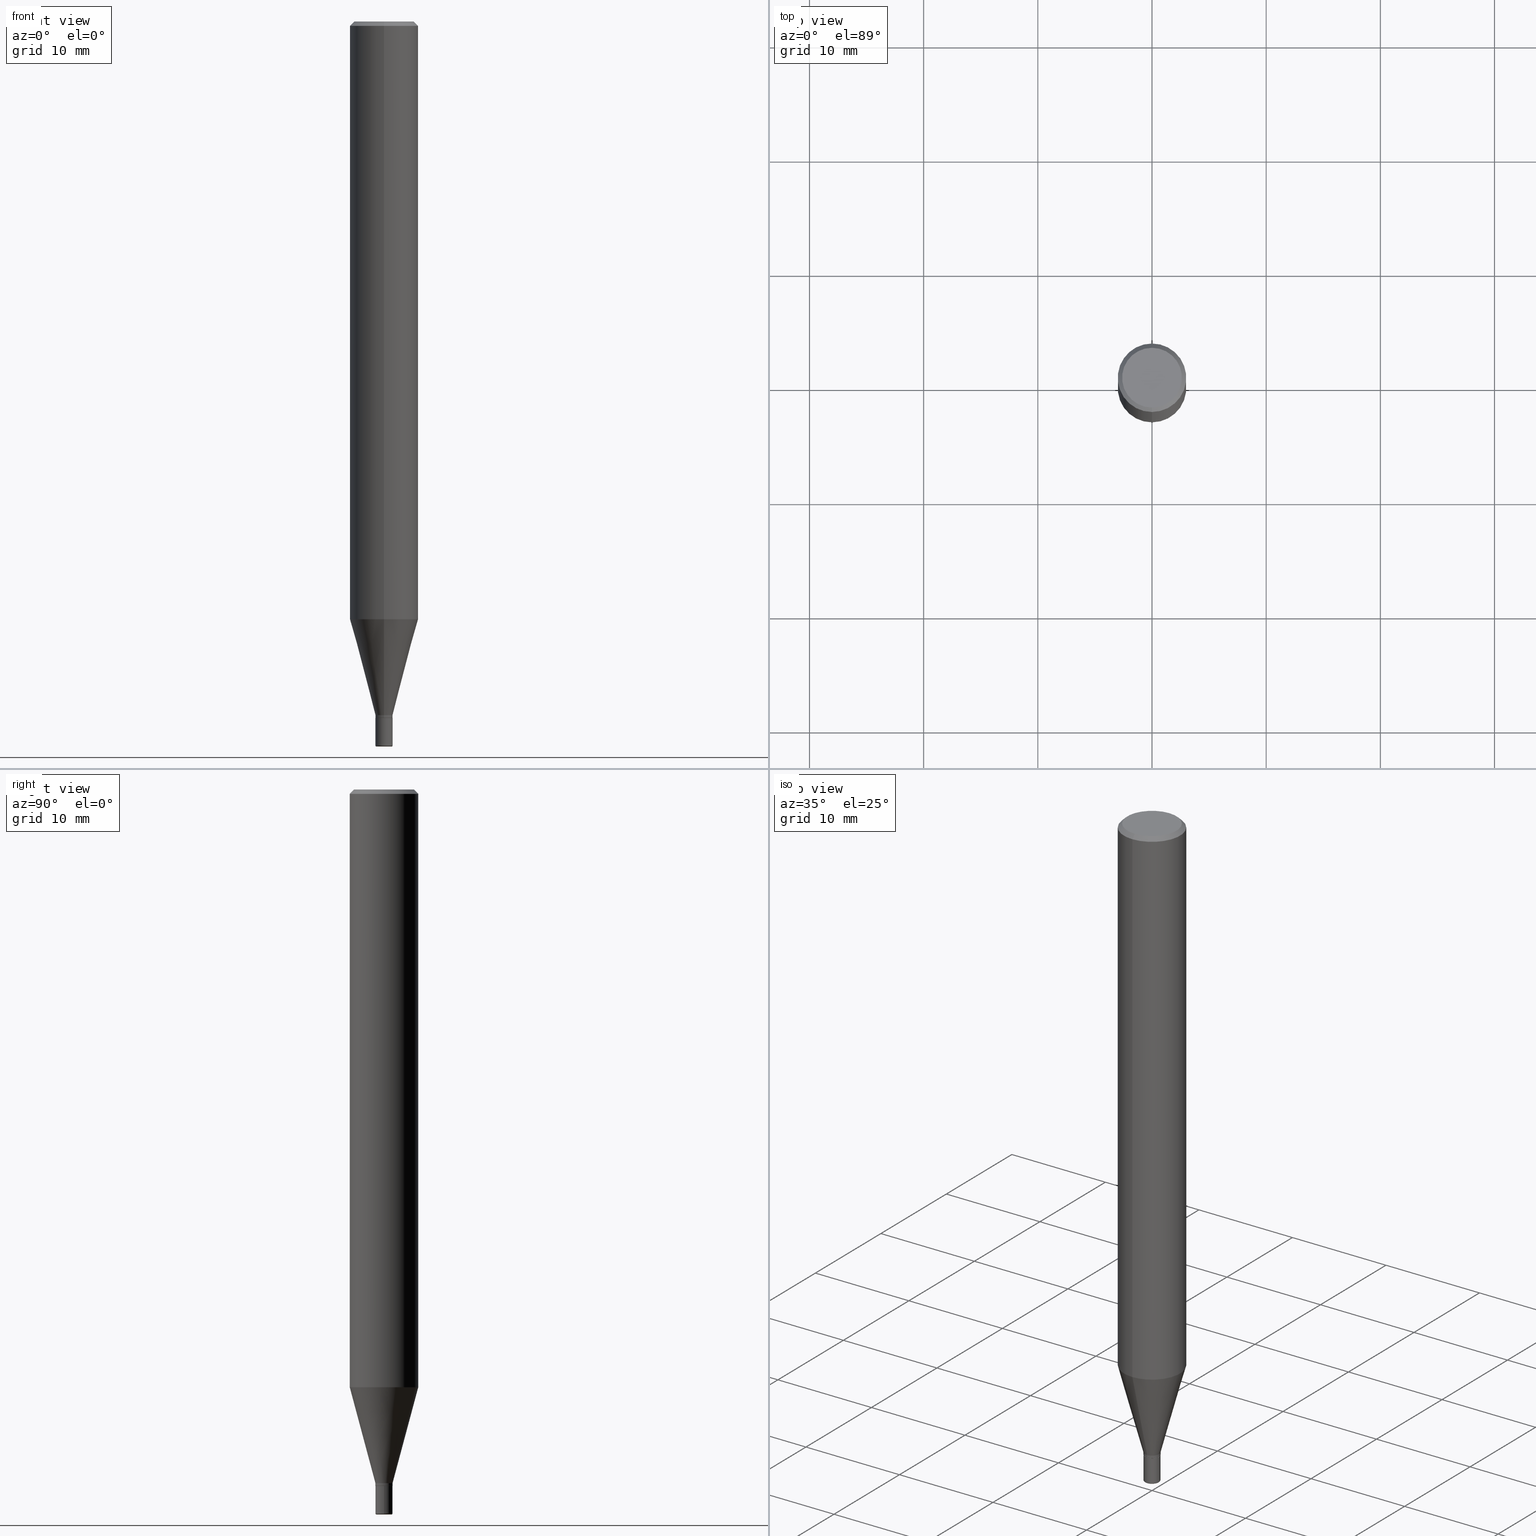
[diagram: canonical four-view strip — front | top / right | iso, engineering-drawing reading convention]
A machine part, canonical four-view strip (front | top / right | iso — engineering-drawing reading convention). The complete STEP part file that produces these views, byte-faithful:
ISO-10303-21;
HEADER;
FILE_DESCRIPTION (( 'STEP AP203' ),
    '1' );
FILE_NAME ('05306.STEP',
    '2024-02-29T19:35:36',
    ( '' ),
    ( '' ),
    'SwSTEP 2.0',
    'SolidWorks 2023',
    '' );
FILE_SCHEMA (( 'CONFIG_CONTROL_DESIGN' ));
ENDSEC;

DATA;
#1 =( CONVERSION_BASED_UNIT ( 'INCH', #517 ) LENGTH_UNIT ( ) NAMED_UNIT ( #414 ) );
#2 = DIRECTION ( 'NONE',  ( 7.105427357601001859E-15, 1.000000000000000000, -3.491481338843145583E-15 ) ) ;
#3 =( NAMED_UNIT ( * ) SI_UNIT ( $, .STERADIAN. ) SOLID_ANGLE_UNIT ( ) );
#4 = DIRECTION ( 'NONE',  ( -2.445666505520537191E-29, 3.491198222142504740E-15, 1.000000000000000000 ) ) ;
#5 = CIRCLE ( 'NONE', #274, 0.1031000000000000111 ) ;
#6 = CARTESIAN_POINT ( 'NONE',  ( 2.099653784171095794E-16, 0.02954999999999999988, -1.031649074643109963E-16 ) ) ;
#7 = AXIS2_PLACEMENT_3D ( 'NONE', #331, #488, #136 ) ;
#8 = PERSON_AND_ORGANIZATION ( #185, #516 ) ;
#9 = ADVANCED_FACE ( 'NONE', ( #26 ), #479, .T. ) ;
#10 = EDGE_CURVE ( 'NONE', #477, #103, #224, .T. ) ;
#11 = CIRCLE ( 'NONE', #88, 0.1180999999999999966 ) ;
#12 = CIRCLE ( 'NONE', #493, 0.02955000000000002069 ) ;
#13 = CIRCLE ( 'NONE', #225, 0.02955000000000002069 ) ;
#14 = VERTEX_POINT ( 'NONE', #239 ) ;
#15 = LINE ( 'NONE', #6, #433 ) ;
#16 = EDGE_LOOP ( 'NONE', ( #43, #56, #431, #21 ) ) ;
#17 = ORIENTED_EDGE ( 'NONE', *, *, #321, .F. ) ;
#18 = VECTOR ( 'NONE', #166, 39.37007874015748143 ) ;
#19 = VERTEX_POINT ( 'NONE', #289 ) ;
#20 = LINE ( 'NONE', #470, #339 ) ;
#21 = ORIENTED_EDGE ( 'NONE', *, *, #23, .F. ) ;
#22 = EDGE_CURVE ( 'NONE', #146, #504, #12, .T. ) ;
#23 = EDGE_CURVE ( 'NONE', #103, #477, #463, .T. ) ;
#24 = DIRECTION ( 'NONE',  ( -6.982962677686265922E-15, -1.000000000000000000, 3.491198222142504346E-15 ) ) ;
#25 = DIRECTION ( 'NONE',  ( -2.445666505520537191E-29, 3.491198222142504346E-15, 1.000000000000000000 ) ) ;
#26 = FACE_OUTER_BOUND ( 'NONE', #497, .T. ) ;
#27 = CARTESIAN_POINT ( 'NONE',  ( 6.199188644380781470E-29, -8.606238667193129794E-15, -2.500000000000000000 ) ) ;
#28 = LINE ( 'NONE', #235, #486 ) ;
#29 = VECTOR ( 'NONE', #226, 39.37007874015748143 ) ;
#30 = DIRECTION ( 'NONE',  ( 1.000000000000000000, -6.982962677686236734E-15, 0.000000000000000000 ) ) ;
#31 = DIRECTION ( 'NONE',  ( 2.445666505520536631E-29, -3.491198222142504740E-15, -1.000000000000000000 ) ) ;
#32 = FACE_OUTER_BOUND ( 'NONE', #64, .T. ) ;
#33 = EDGE_CURVE ( 'NONE', #19, #83, #471, .T. ) ;
#34 = DIRECTION ( 'NONE',  ( 6.982962677686265922E-15, 1.000000000000000000, -3.487819265831411744E-15 ) ) ;
#35 = CARTESIAN_POINT ( 'NONE',  ( 5.849056014602917509E-29, -8.349549668076013435E-15, -2.391600000000000392 ) ) ;
#36 = DIRECTION ( 'NONE',  ( 0.000000000000000000, 0.000000000000000000, 1.000000000000000000 ) ) ;
#37 =( GEOMETRIC_REPRESENTATION_CONTEXT ( 3 ) GLOBAL_UNCERTAINTY_ASSIGNED_CONTEXT ( ( #280 ) ) GLOBAL_UNIT_ASSIGNED_CONTEXT ( ( #1, #300, #3 ) ) REPRESENTATION_CONTEXT ( 'NONE', 'WORKASPACE' ) );
#38 = LINE ( 'NONE', #130, #250 ) ;
#39 = DIRECTION ( 'NONE',  ( -2.445666505520536631E-29, 3.491198222142504740E-15, 1.000000000000000000 ) ) ;
#40 = AXIS2_PLACEMENT_3D ( 'NONE', #173, #218, #484 ) ;
#41 = CARTESIAN_POINT ( 'NONE',  ( -2.063465471255709882E-16, -0.02955000000000846186, -2.401100000000000456 ) ) ;
#42 = CARTESIAN_POINT ( 'NONE',  ( -0.02954999999999999988, -8.340148698208928276E-15, -2.401600000000000179 ) ) ;
#43 = ORIENTED_EDGE ( 'NONE', *, *, #459, .F. ) ;
#44 = EDGE_CURVE ( 'NONE', #372, #268, #66, .T. ) ;
#45 = PRODUCT_DEFINITION ( 'UNKNOWN', '', #337, #242 ) ;
#46 = CALENDAR_DATE ( 2024, 29, 2 ) ;
#47 = VERTEX_POINT ( 'NONE', #315 ) ;
#48 = DIRECTION ( 'NONE',  ( -2.445666505520537191E-29, 3.491198222142504740E-15, 1.000000000000000000 ) ) ;
#49 = AXIS2_PLACEMENT_3D ( 'NONE', #246, #376, #202 ) ;
#50 = DATE_AND_TIME ( #420, #60 ) ;
#51 = CARTESIAN_POINT ( 'NONE',  ( 3.668499758280795470E-31, -5.236797333213741629E-17, -0.01499999999999995781 ) ) ;
#52 = DATE_AND_TIME ( #259, #222 ) ;
#53 = EDGE_CURVE ( 'NONE', #490, #146, #369, .T. ) ;
#54 = ORIENTED_EDGE ( 'NONE', *, *, #407, .T. ) ;
#55 = DATE_AND_TIME ( #97, #86 ) ;
#56 = ORIENTED_EDGE ( 'NONE', *, *, #321, .T. ) ;
#57 = AXIS2_PLACEMENT_3D ( 'NONE', #116, #123, #354 ) ;
#58 = VECTOR ( 'NONE', #502, 39.37007874015748143 ) ;
#59 = COORDINATED_UNIVERSAL_TIME_OFFSET ( 5, 0, .BEHIND. ) ;
#60 = LOCAL_TIME ( 14, 35, 36.00000000000000000, #254 ) ;
#61 = VERTEX_POINT ( 'NONE', #126 ) ;
#62 = EDGE_LOOP ( 'NONE', ( #461, #230 ) ) ;
#63 = SHAPE_DEFINITION_REPRESENTATION ( #370, #472 ) ;
#64 = EDGE_LOOP ( 'NONE', ( #54, #416, #500, #340 ) ) ;
#65 = DIRECTION ( 'NONE',  ( 1.000000000000000000, -6.982962677686271444E-15, 4.883557194083114022E-29 ) ) ;
#66 = CIRCLE ( 'NONE', #87, 0.02565000000000001307 ) ;
#67 = DIRECTION ( 'NONE',  ( -1.807323732225323828E-15, -0.2588190451025172978, 0.9659258262890690894 ) ) ;
#68 = AXIS2_PLACEMENT_3D ( 'NONE', #434, #25, #204 ) ;
#69 = EDGE_CURVE ( 'NONE', #268, #14, #375, .T. ) ;
#70 = EDGE_LOOP ( 'NONE', ( #255, #174, #220, #17 ) ) ;
#71 = DIRECTION ( 'NONE',  ( -6.982962677686265922E-15, -1.000000000000000000, 4.626330217890369336E-15 ) ) ;
#72 = CARTESIAN_POINT ( 'NONE',  ( 0.02565000000000001307, -8.907816339790516731E-15, -2.500000000000000000 ) ) ;
#73 = CARTESIAN_POINT ( 'NONE',  ( 5.872289846405362804E-29, -8.382716051186367705E-15, -2.401100000000000456 ) ) ;
#74 = DIRECTION ( 'NONE',  ( -6.982962677686266711E-15, -1.000000000000000000, 0.000000000000000000 ) ) ;
#75 = CARTESIAN_POINT ( 'NONE',  ( 5.873037884934224349E-29, -8.385141583365698841E-15, -2.401600000000000179 ) ) ;
#76 = CARTESIAN_POINT ( 'NONE',  ( 6.104134687118720107E-29, -8.715086569886376426E-15, -2.496100000000000207 ) ) ;
#77 = CIRCLE ( 'NONE', #197, 0.02954999999999997906 ) ;
#78 = ADVANCED_FACE ( 'NONE', ( #453 ), #179, .T. ) ;
#79 = DIRECTION ( 'NONE',  ( -2.445666505520537191E-29, 3.491198222142504346E-15, 1.000000000000000000 ) ) ;
#80 = CARTESIAN_POINT ( 'NONE',  ( -2.063465471256291667E-16, -0.02954999999999999988, 1.031649074643109963E-16 ) ) ;
#81 = FACE_OUTER_BOUND ( 'NONE', #117, .T. ) ;
#82 = DIRECTION ( 'NONE',  ( -6.982962677686266711E-15, -1.000000000000000000, 0.000000000000000000 ) ) ;
#83 = VERTEX_POINT ( 'NONE', #247 ) ;
#84 = DIRECTION ( 'NONE',  ( -6.982962677686265922E-15, -1.000000000000000000, 3.491198222142503951E-15 ) ) ;
#85 = APPROVAL_ROLE ( '' ) ;
#86 = LOCAL_TIME ( 14, 35, 36.00000000000000000, #309 ) ;
#87 = AXIS2_PLACEMENT_3D ( 'NONE', #438, #272, #30 ) ;
#88 = AXIS2_PLACEMENT_3D ( 'NONE', #284, #435, #507 ) ;
#89 = CARTESIAN_POINT ( 'NONE',  ( -7.587710785535310407E-16, -0.1031000000000000111, 3.599133473710561034E-16 ) ) ;
#90 = DIRECTION ( 'NONE',  ( 1.839019923739594004E-15, 0.2588190451025240701, 0.9659258262890673130 ) ) ;
#91 = EDGE_LOOP ( 'NONE', ( #258, #149, #210, #234 ) ) ;
#92 = FACE_OUTER_BOUND ( 'NONE', #501, .T. ) ;
#93 = APPROVAL_ROLE ( '' ) ;
#94 = VECTOR ( 'NONE', #4, 39.37007874015748143 ) ;
#95 = PRODUCT ( '05306', '05306', '', ( #252 ) ) ;
#96 = ORIENTED_EDGE ( 'NONE', *, *, #327, .F. ) ;
#97 = CALENDAR_DATE ( 2024, 29, 2 ) ;
#98 = ORIENTED_EDGE ( 'NONE', *, *, #419, .F. ) ;
#99 = CIRCLE ( 'NONE', #426, 0.02904999999999997862 ) ;
#100 = CARTESIAN_POINT ( 'NONE',  ( 0.000000000000000000, 0.000000000000000000, 0.000000000000000000 ) ) ;
#101 = AXIS2_PLACEMENT_3D ( 'NONE', #288, #39, #485 ) ;
#102 = DIRECTION ( 'NONE',  ( -2.445666505520537191E-29, 3.491198222142504346E-15, 1.000000000000000000 ) ) ;
#103 = VERTEX_POINT ( 'NONE', #42 ) ;
#104 = ORIENTED_EDGE ( 'NONE', *, *, #419, .T. ) ;
#105 = EDGE_CURVE ( 'NONE', #372, #227, #243, .T. ) ;
#106 = DIRECTION ( 'NONE',  ( -2.445468806185136597E-29, 3.491481338843145583E-15, 1.000000000000000000 ) ) ;
#107 = ORIENTED_EDGE ( 'NONE', *, *, #327, .T. ) ;
#108 = DIRECTION ( 'NONE',  ( 1.000000000000000000, -6.982962677686261977E-15, 0.000000000000000000 ) ) ;
#109 = CC_DESIGN_APPROVAL ( #180, ( #337 ) ) ;
#110 = EDGE_CURVE ( 'NONE', #504, #19, #38, .T. ) ;
#111 = AXIS2_PLACEMENT_3D ( 'NONE', #209, #2, #514 ) ;
#112 = LINE ( 'NONE', #245, #113 ) ;
#113 = VECTOR ( 'NONE', #404, 39.37007874015748143 ) ;
#114 = FACE_OUTER_BOUND ( 'NONE', #150, .T. ) ;
#115 = LINE ( 'NONE', #392, #58 ) ;
#116 = CARTESIAN_POINT ( 'NONE',  ( 0.000000000000000000, 0.000000000000000000, 0.000000000000000000 ) ) ;
#117 = EDGE_LOOP ( 'NONE', ( #190, #236, #418, #348 ) ) ;
#118 = CARTESIAN_POINT ( 'NONE',  ( 6.104134687118721228E-29, -8.715086569886378004E-15, -2.496100000000000652 ) ) ;
#119 = DIRECTION ( 'NONE',  ( -6.982962677686265922E-15, -1.000000000000000000, 3.491198222142503951E-15 ) ) ;
#120 = DIRECTION ( 'NONE',  ( -2.445666505520537191E-29, 3.491198222142504346E-15, 1.000000000000000000 ) ) ;
#121 = CIRCLE ( 'NONE', #267, 0.02954999999999997906 ) ;
#122 = CARTESIAN_POINT ( 'NONE',  ( 2.063465471256878875E-16, 0.02954999999999161769, -2.401600000000000179 ) ) ;
#123 = DIRECTION ( 'NONE',  ( -2.445666505520537191E-29, 3.491198222142504346E-15, 1.000000000000000000 ) ) ;
#124 = DIRECTION ( 'NONE',  ( -2.445468806185136597E-29, 3.491481338843145583E-15, 1.000000000000000000 ) ) ;
#125 = EDGE_CURVE ( 'NONE', #495, #61, #177, .T. ) ;
#126 = CARTESIAN_POINT ( 'NONE',  ( -8.246878922347475723E-16, -0.1181000000000000522, -0.01499999999999954495 ) ) ;
#127 = DIRECTION ( 'NONE',  ( 2.438088387897960049E-29, -3.491481338843145188E-15, -1.000000000000000000 ) ) ;
#128 = CARTESIAN_POINT ( 'NONE',  ( 5.245581746749487018E-16, 0.02954999999999167321, -2.391600000000000392 ) ) ;
#129 = AXIS2_PLACEMENT_3D ( 'NONE', #161, #120, #287 ) ;
#130 = CARTESIAN_POINT ( 'NONE',  ( 2.099653784171682016E-16, 0.02954999999999167321, -2.391600000000000392 ) ) ;
#131 = AXIS2_PLACEMENT_3D ( 'NONE', #373, #299, #172 ) ;
#132 = CC_DESIGN_APPROVAL ( #361, ( #509 ) ) ;
#133 = CARTESIAN_POINT ( 'NONE',  ( -8.246878922347479668E-16, -0.1180999999999999966, 4.123105100350297089E-16 ) ) ;
#134 = DIRECTION ( 'NONE',  ( -2.445468806185136597E-29, 3.491481338843145583E-15, 1.000000000000000000 ) ) ;
#135 = ORIENTED_EDGE ( 'NONE', *, *, #305, .F. ) ;
#136 = DIRECTION ( 'NONE',  ( -6.982962677686266711E-15, -1.000000000000000000, 0.000000000000000000 ) ) ;
#137 = PERSON_AND_ORGANIZATION ( #185, #516 ) ;
#138 = EDGE_CURVE ( 'NONE', #19, #462, #427, .T. ) ;
#139 = MANIFOLD_SOLID_BREP ( 'Body-Move/Copy2[1]', #303 ) ;
#140 = CYLINDRICAL_SURFACE ( 'NONE', #147, 0.02954999999999999988 ) ;
#141 = AXIS2_PLACEMENT_3D ( 'NONE', #122, #127, #442 ) ;
#142 = MANIFOLD_SOLID_BREP ( 'Body-Move/Copy2[2]', #365 ) ;
#143 = EDGE_CURVE ( 'NONE', #462, #61, #316, .T. ) ;
#144 = ADVANCED_FACE ( 'NONE', ( #335 ), #140, .T. ) ;
#145 = EDGE_LOOP ( 'NONE', ( #468, #223, #464, #261 ) ) ;
#146 = VERTEX_POINT ( 'NONE', #325 ) ;
#147 = AXIS2_PLACEMENT_3D ( 'NONE', #457, #203, #84 ) ;
#148 = APPROVAL_ROLE ( '' ) ;
#149 = ORIENTED_EDGE ( 'NONE', *, *, #256, .T. ) ;
#150 = EDGE_LOOP ( 'NONE', ( #253, #298, #389, #342 ) ) ;
#151 = CARTESIAN_POINT ( 'NONE',  ( 6.104134687118721228E-29, -8.715086569886378004E-15, -2.496100000000000652 ) ) ;
#152 = EDGE_LOOP ( 'NONE', ( #265, #352 ) ) ;
#153 = CIRCLE ( 'NONE', #317, 0.02954999999999996171 ) ;
#154 = AXIS2_PLACEMENT_3D ( 'NONE', #518, #364, #515 ) ;
#155 = DIRECTION ( 'NONE',  ( -2.445666505520537191E-29, 3.491198222142504346E-15, 1.000000000000000000 ) ) ;
#156 = AXIS2_PLACEMENT_3D ( 'NONE', #358, #320, #512 ) ;
#157 = DIRECTION ( 'NONE',  ( -2.438088387897960049E-29, 3.491481338843145188E-15, 1.000000000000000000 ) ) ;
#158 = FACE_OUTER_BOUND ( 'NONE', #205, .T. ) ;
#159 = ADVANCED_FACE ( 'NONE', ( #207 ), #445, .F. ) ;
#160 = DIRECTION ( 'NONE',  ( -2.445666505520537191E-29, 3.491198222142504346E-15, 1.000000000000000000 ) ) ;
#161 = CARTESIAN_POINT ( 'NONE',  ( 0.000000000000000000, 0.000000000000000000, 0.000000000000000000 ) ) ;
#162 = DIRECTION ( 'NONE',  ( -6.982962677686265922E-15, -1.000000000000000000, 3.491198222142504346E-15 ) ) ;
#163 = AXIS2_PLACEMENT_3D ( 'NONE', #406, #367, #34 ) ;
#164 = LINE ( 'NONE', #324, #18 ) ;
#165 = ADVANCED_FACE ( 'NONE', ( #248 ), #410, .F. ) ;
#166 = DIRECTION ( 'NONE',  ( -2.445468806185136877E-29, 3.491481338843145188E-15, 1.000000000000000000 ) ) ;
#167 = ADVANCED_FACE ( 'NONE', ( #81 ), #231, .T. ) ;
#168 = DIRECTION ( 'NONE',  ( 1.000000000000000000, -6.982962677686266711E-15, 4.876176775795935793E-29 ) ) ;
#169 = EDGE_CURVE ( 'NONE', #467, #432, #421, .T. ) ;
#170 = APPLICATION_PROTOCOL_DEFINITION ( 'international standard', 'config_control_design', 1994, #290 ) ;
#171 = CONICAL_SURFACE ( 'NONE', #7, 0.02955000000000002069, 0.2617993877991494078 ) ;
#172 = DIRECTION ( 'NONE',  ( -6.982962677686266711E-15, -1.000000000000000000, 0.000000000000000000 ) ) ;
#173 = CARTESIAN_POINT ( 'NONE',  ( 3.668499758280795470E-31, -5.236797333213741629E-17, -0.01499999999999995781 ) ) ;
#174 = ORIENTED_EDGE ( 'NONE', *, *, #44, .T. ) ;
#175 = COORDINATED_UNIVERSAL_TIME_OFFSET ( 5, 0, .BEHIND. ) ;
#176 = CARTESIAN_POINT ( 'NONE',  ( 8.391509709326781971E-16, 0.1180999999999999966, -4.123105100350297089E-16 ) ) ;
#177 = LINE ( 'NONE', #263, #390 ) ;
#178 = EDGE_CURVE ( 'NONE', #14, #477, #164, .T. ) ;
#179 = CONICAL_SURFACE ( 'NONE', #338, 0.1180999999999999966, 0.7853981633974495002 ) ;
#180 = APPROVAL ( #455, 'UNSPECIFIED' ) ;
#181 = APPROVAL_DATE_TIME ( #50, #180 ) ;
#182 = ORIENTED_EDGE ( 'NONE', *, *, #293, .F. ) ;
#183 = DIRECTION ( 'NONE',  ( -4.851104656540969797E-15, -0.7071067811865507924, -0.7071067811865442421 ) ) ;
#184 = ORIENTED_EDGE ( 'NONE', *, *, #22, .T. ) ;
#185 = PERSON ( 'UNSPECIFIED', 'UNSPECIFIED', 'UNSPECIFIED', ('UNSPECIFIED'), ('UNSPECIFIED'), ('UNSPECIFIED') ) ;
#186 = PERSON_AND_ORGANIZATION_ROLE ( 'design_supplier' ) ;
#187 = ORIENTED_EDGE ( 'NONE', *, *, #69, .F. ) ;
#188 = FACE_OUTER_BOUND ( 'NONE', #270, .T. ) ;
#189 = CIRCLE ( 'NONE', #480, 0.02954999999999996171 ) ;
#190 = ORIENTED_EDGE ( 'NONE', *, *, #349, .F. ) ;
#191 = CARTESIAN_POINT ( 'NONE',  ( 2.081890215777679249E-16, 0.02904999999999159296, -2.401600000000000179 ) ) ;
#192 = ORIENTED_EDGE ( 'NONE', *, *, #138, .F. ) ;
#193 = DIRECTION ( 'NONE',  ( -2.445666505520537191E-29, 3.491198222142504346E-15, 1.000000000000000000 ) ) ;
#194 = CARTESIAN_POINT ( 'NONE',  ( 5.872289846405362804E-29, -8.382716051186367705E-15, -2.401100000000000456 ) ) ;
#195 = CARTESIAN_POINT ( 'NONE',  ( 0.000000000000000000, 0.000000000000000000, 0.000000000000000000 ) ) ;
#196 = EDGE_CURVE ( 'NONE', #268, #372, #448, .T. ) ;
#197 = AXIS2_PLACEMENT_3D ( 'NONE', #73, #233, #323 ) ;
#198 = DIRECTION ( 'NONE',  ( 5.024295867788576727E-15, 0.7071067811866224018, 0.7071067811864726327 ) ) ;
#199 = ORIENTED_EDGE ( 'NONE', *, *, #221, .F. ) ;
#200 = DIRECTION ( 'NONE',  ( -2.445468806185136597E-29, 3.491481338843145583E-15, 1.000000000000000000 ) ) ;
#201 = CARTESIAN_POINT ( 'NONE',  ( 8.391509709327288814E-16, 0.1180999999999999411, -0.01500000000000036894 ) ) ;
#202 = DIRECTION ( 'NONE',  ( 1.000000000000000000, -6.982962677686243834E-15, 0.000000000000000000 ) ) ;
#203 = DIRECTION ( 'NONE',  ( -2.445666505520537191E-29, 3.491198222142504346E-15, 1.000000000000000000 ) ) ;
#204 = DIRECTION ( 'NONE',  ( -6.982962677686266711E-15, -1.000000000000000000, 0.000000000000000000 ) ) ;
#205 = EDGE_LOOP ( 'NONE', ( #192, #228, #397, #386 ) ) ;
#206 = AXIS2_PLACEMENT_3D ( 'NONE', #100, #134, #168 ) ;
#207 = FACE_OUTER_BOUND ( 'NONE', #152, .T. ) ;
#208 = ADVANCED_FACE ( 'NONE', ( #350 ), #343, .F. ) ;
#209 = CARTESIAN_POINT ( 'NONE',  ( -0.02565000000000000960, -8.532832358163911079E-15, -2.496100000000000207 ) ) ;
#210 = ORIENTED_EDGE ( 'NONE', *, *, #22, .F. ) ;
#211 = FACE_OUTER_BOUND ( 'NONE', #444, .T. ) ;
#212 = EDGE_LOOP ( 'NONE', ( #98, #345, #430, #135 ) ) ;
#213 = EDGE_CURVE ( 'NONE', #306, #462, #465, .T. ) ;
#214 = DATE_AND_TIME ( #415, #304 ) ;
#215 = ORIENTED_EDGE ( 'NONE', *, *, #53, .T. ) ;
#216 = CIRCLE ( 'NONE', #346, 0.1031000000000000111 ) ;
#217 = FACE_OUTER_BOUND ( 'NONE', #212, .T. ) ;
#218 = DIRECTION ( 'NONE',  ( -2.445666505520537191E-29, 3.491198222142504346E-15, 1.000000000000000000 ) ) ;
#219 = ADVANCED_FACE ( 'NONE', ( #188 ), #322, .T. ) ;
#220 = ORIENTED_EDGE ( 'NONE', *, *, #69, .T. ) ;
#221 = EDGE_CURVE ( 'NONE', #467, #490, #115, .T. ) ;
#222 = LOCAL_TIME ( 14, 35, 36.00000000000000000, #59 ) ;
#223 = ORIENTED_EDGE ( 'NONE', *, *, #237, .F. ) ;
#224 = CIRCLE ( 'NONE', #412, 0.02954999999999999988 ) ;
#225 = AXIS2_PLACEMENT_3D ( 'NONE', #318, #281, #74 ) ;
#226 = DIRECTION ( 'NONE',  ( -2.445666505520537191E-29, 3.491198222142504740E-15, 1.000000000000000000 ) ) ;
#227 = VERTEX_POINT ( 'NONE', #395 ) ;
#228 = ORIENTED_EDGE ( 'NONE', *, *, #33, .T. ) ;
#229 = CARTESIAN_POINT ( 'NONE',  ( 8.246878922347483612E-16, 0.1180999999999999411, -0.01500000000000036894 ) ) ;
#230 = ORIENTED_EDGE ( 'NONE', *, *, #349, .T. ) ;
#231 = CONICAL_SURFACE ( 'NONE', #163, 0.1180999999999999966, 0.7853981633974495002 ) ;
#232 = APPROVAL_PERSON_ORGANIZATION ( #294, #483, #85 ) ;
#233 = DIRECTION ( 'NONE',  ( -2.445666505520537191E-29, 3.491198222142504346E-15, 1.000000000000000000 ) ) ;
#234 = ORIENTED_EDGE ( 'NONE', *, *, #53, .F. ) ;
#235 = CARTESIAN_POINT ( 'NONE',  ( -2.063465471255708403E-16, -0.02955000000000837165, -2.391600000000000392 ) ) ;
#236 = ORIENTED_EDGE ( 'NONE', *, *, #125, .T. ) ;
#237 = EDGE_CURVE ( 'NONE', #306, #495, #216, .T. ) ;
#238 = CC_DESIGN_DATE_AND_TIME_ASSIGNMENT ( #52, #344, ( #509 ) ) ;
#239 = CARTESIAN_POINT ( 'NONE',  ( 0.02954999999999996171, -8.921433117012006825E-15, -2.496100000000000652 ) ) ;
#240 = FACE_OUTER_BOUND ( 'NONE', #16, .T. ) ;
#241 = DIRECTION ( 'NONE',  ( -2.445468806185136597E-29, 3.491481338843145583E-15, 1.000000000000000000 ) ) ;
#242 = DESIGN_CONTEXT ( 'detailed design', #391, 'design' ) ;
#243 = CIRCLE ( 'NONE', #111, 0.003899999999999952550 ) ;
#244 = DIRECTION ( 'NONE',  ( -2.445666505520537191E-29, 3.491198222142504346E-15, 1.000000000000000000 ) ) ;
#245 = CARTESIAN_POINT ( 'NONE',  ( -0.02954999999999997906, 2.099653784171094561E-16, -1.453545319170323675E-30 ) ) ;
#246 = CARTESIAN_POINT ( 'NONE',  ( 0.02565000000000000960, -8.894199562569029792E-15, -2.496100000000000207 ) ) ;
#247 = CARTESIAN_POINT ( 'NONE',  ( -8.246878922346977755E-16, -0.1181000000000072270, -2.061126900989775912 ) ) ;
#248 = FACE_OUTER_BOUND ( 'NONE', #330, .T. ) ;
#249 = DIRECTION ( 'NONE',  ( -2.445666505520537191E-29, 3.491198222142504740E-15, 1.000000000000000000 ) ) ;
#250 = VECTOR ( 'NONE', #90, 39.37007874015748854 ) ;
#251 = CC_DESIGN_SECURITY_CLASSIFICATION ( #509, ( #337 ) ) ;
#252 = MECHANICAL_CONTEXT ( 'NONE', #290, 'mechanical' ) ;
#253 = ORIENTED_EDGE ( 'NONE', *, *, #383, .T. ) ;
#254 = COORDINATED_UNIVERSAL_TIME_OFFSET ( 5, 0, .BEHIND. ) ;
#255 = ORIENTED_EDGE ( 'NONE', *, *, #105, .F. ) ;
#256 = EDGE_CURVE ( 'NONE', #47, #504, #15, .T. ) ;
#257 = DIRECTION ( 'NONE',  ( -6.982962677686265922E-15, -1.000000000000000000, 3.487819265831411744E-15 ) ) ;
#258 = ORIENTED_EDGE ( 'NONE', *, *, #293, .T. ) ;
#259 = CALENDAR_DATE ( 2024, 29, 2 ) ;
#260 = ADVANCED_FACE ( 'NONE', ( #217 ), #356, .T. ) ;
#261 = ORIENTED_EDGE ( 'NONE', *, *, #143, .T. ) ;
#262 = PERSON_AND_ORGANIZATION_ROLE ( 'creator' ) ;
#263 = CARTESIAN_POINT ( 'NONE',  ( -8.102248135368174406E-16, -0.1181000000000000522, -0.01499999999999954495 ) ) ;
#264 = CONICAL_SURFACE ( 'NONE', #68, 0.02904999999999997862, 0.7853981633975507526 ) ;
#265 = ORIENTED_EDGE ( 'NONE', *, *, #10, .T. ) ;
#266 = ADVANCED_FACE ( 'NONE', ( #92 ), #171, .T. ) ;
#267 = AXIS2_PLACEMENT_3D ( 'NONE', #194, #155, #510 ) ;
#268 = VERTEX_POINT ( 'NONE', #72 ) ;
#269 = ORIENTED_EDGE ( 'NONE', *, *, #256, .F. ) ;
#270 = EDGE_LOOP ( 'NONE', ( #394, #333, #378, #187 ) ) ;
#271 = CIRCLE ( 'NONE', #40, 0.1180999999999999966 ) ;
#272 = DIRECTION ( 'NONE',  ( -2.445468806185136597E-29, 3.491481338843145583E-15, 1.000000000000000000 ) ) ;
#273 = AXIS2_PLACEMENT_3D ( 'NONE', #75, #241, #108 ) ;
#274 = AXIS2_PLACEMENT_3D ( 'NONE', #351, #244, #162 ) ;
#275 = ADVANCED_FACE ( 'NONE', ( #114 ), #278, .T. ) ;
#276 = FACE_OUTER_BOUND ( 'NONE', #312, .T. ) ;
#277 = ADVANCED_FACE ( 'NONE', ( #301 ), #295, .T. ) ;
#278 = CYLINDRICAL_SURFACE ( 'NONE', #206, 0.02954999999999997906 ) ;
#279 = CARTESIAN_POINT ( 'NONE',  ( 7.138737119009904695E-49, -1.019057434117555822E-34, -2.918933183611021232E-20 ) ) ;
#280 = UNCERTAINTY_MEASURE_WITH_UNIT (LENGTH_MEASURE( 1.000000000000000082E-05 ), #1, 'distance_accuracy_value', 'NONE');
#281 = DIRECTION ( 'NONE',  ( -2.445666505520537191E-29, 3.491198222142504346E-15, 1.000000000000000000 ) ) ;
#282 = DIRECTION ( 'NONE',  ( 1.000000000000000000, -6.982962677686261977E-15, 0.000000000000000000 ) ) ;
#283 = DIRECTION ( 'NONE',  ( 1.000000000000000000, -6.982962677686236734E-15, 0.000000000000000000 ) ) ;
#284 = CARTESIAN_POINT ( 'NONE',  ( 5.040829025378040507E-29, -7.195802572345596086E-15, -2.061126900989776356 ) ) ;
#285 = ORIENTED_EDGE ( 'NONE', *, *, #366, .T. ) ;
#286 = AXIS2_PLACEMENT_3D ( 'NONE', #310, #106, #65 ) ;
#287 = DIRECTION ( 'NONE',  ( -6.982962677686265922E-15, -1.000000000000000000, 3.491198222142503951E-15 ) ) ;
#288 = CARTESIAN_POINT ( 'NONE',  ( 5.873512679658122080E-29, -8.384461650297437903E-15, -2.401600000000000179 ) ) ;
#289 = CARTESIAN_POINT ( 'NONE',  ( 8.391509709327282898E-16, 0.1180999999999927802, -2.061126900989776800 ) ) ;
#290 = APPLICATION_CONTEXT ( 'configuration controlled 3d designs of mechanical parts and assemblies' ) ;
#291 = DIRECTION ( 'NONE',  ( 6.982962677686265922E-15, 1.000000000000000000, -3.491198222142504740E-15 ) ) ;
#292 = DIRECTION ( 'NONE',  ( 2.445666505520537191E-29, -3.491198222142504346E-15, -1.000000000000000000 ) ) ;
#293 = EDGE_CURVE ( 'NONE', #490, #47, #77, .T. ) ;
#294 = PERSON_AND_ORGANIZATION ( #185, #516 ) ;
#295 = TOROIDAL_SURFACE ( 'NONE', #428, 0.02565000000000000960, 0.003899999999999954718 ) ;
#296 = PRODUCT_RELATED_PRODUCT_CATEGORY ( 'detail', '', ( #95 ) ) ;
#297 = VECTOR ( 'NONE', #249, 39.37007874015748143 ) ;
#298 = ORIENTED_EDGE ( 'NONE', *, *, #459, .T. ) ;
#299 = DIRECTION ( 'NONE',  ( -2.445666505520537191E-29, 3.491198222142504346E-15, 1.000000000000000000 ) ) ;
#300 =( NAMED_UNIT ( * ) PLANE_ANGLE_UNIT ( ) SI_UNIT ( $, .RADIAN. ) );
#301 = FACE_OUTER_BOUND ( 'NONE', #70, .T. ) ;
#302 = PERSON_AND_ORGANIZATION ( #185, #516 ) ;
#303 = CLOSED_SHELL ( 'NONE', ( #219, #275, #159, #436, #277, #208 ) ) ;
#304 = LOCAL_TIME ( 14, 35, 36.00000000000000000, #175 ) ;
#305 = EDGE_CURVE ( 'NONE', #47, #490, #121, .T. ) ;
#306 = VERTEX_POINT ( 'NONE', #513 ) ;
#307 = ORIENTED_EDGE ( 'NONE', *, *, #305, .T. ) ;
#308 = DIRECTION ( 'NONE',  ( 1.000000000000000000, -6.982962677686265922E-15, 4.876176775795935793E-29 ) ) ;
#309 = COORDINATED_UNIVERSAL_TIME_OFFSET ( 5, 0, .BEHIND. ) ;
#310 = CARTESIAN_POINT ( 'NONE',  ( 6.104134687118720107E-29, -8.715086569886376426E-15, -2.496100000000000207 ) ) ;
#311 = ORIENTED_EDGE ( 'NONE', *, *, #110, .T. ) ;
#312 = EDGE_LOOP ( 'NONE', ( #458, #104, #182, #199 ) ) ;
#313 = CYLINDRICAL_SURFACE ( 'NONE', #156, 0.02954999999999997906 ) ;
#314 = CC_DESIGN_APPROVAL ( #483, ( #45 ) ) ;
#315 = CARTESIAN_POINT ( 'NONE',  ( 2.099653784171674374E-16, 0.02954999999999149626, -2.401100000000000456 ) ) ;
#316 = CIRCLE ( 'NONE', #380, 0.1180999999999999966 ) ;
#317 = AXIS2_PLACEMENT_3D ( 'NONE', #151, #200, #398 ) ;
#318 = CARTESIAN_POINT ( 'NONE',  ( 5.849056014602917509E-29, -8.349549668076013435E-15, -2.391600000000000392 ) ) ;
#319 = DIRECTION ( 'NONE',  ( 1.000000000000000000, -6.982962677686271444E-15, 0.000000000000000000 ) ) ;
#320 = DIRECTION ( 'NONE',  ( -2.445468806185136597E-29, 3.491481338843145583E-15, 1.000000000000000000 ) ) ;
#321 = EDGE_CURVE ( 'NONE', #227, #14, #189, .T. ) ;
#322 = TOROIDAL_SURFACE ( 'NONE', #286, 0.02565000000000000960, 0.003899999999999954718 ) ;
#323 = DIRECTION ( 'NONE',  ( -6.982962677686265922E-15, -1.000000000000000000, 0.000000000000000000 ) ) ;
#324 = CARTESIAN_POINT ( 'NONE',  ( 0.02954999999999997906, -2.063465471256290434E-16, 1.440910237247698019E-30 ) ) ;
#325 = CARTESIAN_POINT ( 'NONE',  ( -2.063465471255708403E-16, -0.02955000000000837165, -2.391600000000000392 ) ) ;
#326 = ADVANCED_FACE ( 'NONE', ( #32 ), #475, .T. ) ;
#327 = EDGE_CURVE ( 'NONE', #504, #146, #13, .T. ) ;
#328 = PERSON_AND_ORGANIZATION_ROLE ( 'design_owner' ) ;
#329 = APPLICATION_PROTOCOL_DEFINITION ( 'international standard', 'config_control_design', 1994, #391 ) ;
#330 = EDGE_LOOP ( 'NONE', ( #454, #429 ) ) ;
#331 = CARTESIAN_POINT ( 'NONE',  ( 5.849056014602917509E-29, -8.349549668076013435E-15, -2.391600000000000392 ) ) ;
#332 = DIRECTION ( 'NONE',  ( 1.000000000000000000, 0.000000000000000000, 0.000000000000000000 ) ) ;
#333 = ORIENTED_EDGE ( 'NONE', *, *, #105, .T. ) ;
#334 = APPROVAL_DATE_TIME ( #214, #483 ) ;
#335 = FACE_OUTER_BOUND ( 'NONE', #91, .T. ) ;
#336 = CC_DESIGN_DATE_AND_TIME_ASSIGNMENT ( #487, #489, ( #45 ) ) ;
#337 = PRODUCT_DEFINITION_FORMATION_WITH_SPECIFIED_SOURCE ( 'ANY', '', #95, .NOT_KNOWN. ) ;
#338 = AXIS2_PLACEMENT_3D ( 'NONE', #405, #292, #363 ) ;
#339 = VECTOR ( 'NONE', #198, 39.37007874015748143 ) ;
#340 = ORIENTED_EDGE ( 'NONE', *, *, #505, .F. ) ;
#341 = CC_DESIGN_PERSON_AND_ORGANIZATION_ASSIGNMENT ( #379, #347, ( #509 ) ) ;
#342 = ORIENTED_EDGE ( 'NONE', *, *, #178, .F. ) ;
#343 = PLANE ( 'NONE',  #508 ) ;
#344 = DATE_TIME_ROLE ( 'classification_date' ) ;
#345 = ORIENTED_EDGE ( 'NONE', *, *, #451, .T. ) ;
#346 = AXIS2_PLACEMENT_3D ( 'NONE', #279, #385, #24 ) ;
#347 = PERSON_AND_ORGANIZATION_ROLE ( 'classification_officer' ) ;
#348 = ORIENTED_EDGE ( 'NONE', *, *, #213, .F. ) ;
#349 = EDGE_CURVE ( 'NONE', #495, #306, #5, .T. ) ;
#350 = FACE_OUTER_BOUND ( 'NONE', #387, .T. ) ;
#351 = CARTESIAN_POINT ( 'NONE',  ( 7.138737119009904695E-49, -1.019057434117555822E-34, -2.918933183611021232E-20 ) ) ;
#352 = ORIENTED_EDGE ( 'NONE', *, *, #23, .T. ) ;
#353 = ADVANCED_FACE ( 'NONE', ( #481 ), #360, .F. ) ;
#354 = DIRECTION ( 'NONE',  ( -6.982962677686265922E-15, -1.000000000000000000, 3.491198222142503951E-15 ) ) ;
#355 = AXIS2_PLACEMENT_3D ( 'NONE', #403, #31, #291 ) ;
#356 = CONICAL_SURFACE ( 'NONE', #131, 0.02904999999999997862, 0.7853981633975507526 ) ;
#357 = CONICAL_SURFACE ( 'NONE', #447, 0.02955000000000002069, 0.2617993877991494078 ) ;
#358 = CARTESIAN_POINT ( 'NONE',  ( 0.000000000000000000, 0.000000000000000000, 0.000000000000000000 ) ) ;
#359 = ORIENTED_EDGE ( 'NONE', *, *, #33, .F. ) ;
#360 = PLANE ( 'NONE',  #355 ) ;
#361 = APPROVAL ( #496, 'UNSPECIFIED' ) ;
#362 = CARTESIAN_POINT ( 'NONE',  ( -2.028550657867271429E-16, -0.02905000000000836080, -2.401600000000000179 ) ) ;
#363 = DIRECTION ( 'NONE',  ( 6.982962677686265922E-15, 1.000000000000000000, -3.487819265831411744E-15 ) ) ;
#364 = DIRECTION ( 'NONE',  ( -2.445666505520537191E-29, 3.491198222142504346E-15, 1.000000000000000000 ) ) ;
#365 = CLOSED_SHELL ( 'NONE', ( #144, #474, #167, #326, #266, #492, #443, #78, #353, #165, #260, #9 ) ) ;
#366 = EDGE_CURVE ( 'NONE', #146, #83, #28, .T. ) ;
#367 = DIRECTION ( 'NONE',  ( 2.445666505520537191E-29, -3.491198222142504346E-15, -1.000000000000000000 ) ) ;
#368 = LINE ( 'NONE', #133, #297 ) ;
#369 = LINE ( 'NONE', #80, #94 ) ;
#370 = PRODUCT_DEFINITION_SHAPE ( 'NONE', 'NONE',  #45 ) ;
#371 = CARTESIAN_POINT ( 'NONE',  ( 5.849056014602917509E-29, -8.349549668076013435E-15, -2.391600000000000392 ) ) ;
#372 = VERTEX_POINT ( 'NONE', #503 ) ;
#373 = CARTESIAN_POINT ( 'NONE',  ( 5.873512679658122080E-29, -8.384461650297437903E-15, -2.401600000000000179 ) ) ;
#374 = CARTESIAN_POINT ( 'NONE',  ( 0.000000000000000000, 0.000000000000000000, 0.000000000000000000 ) ) ;
#375 = CIRCLE ( 'NONE', #49, 0.003899999999999952550 ) ;
#376 = DIRECTION ( 'NONE',  ( -6.982962677686266711E-15, -1.000000000000000000, 3.491481338843145583E-15 ) ) ;
#377 = CC_DESIGN_PERSON_AND_ORGANIZATION_ASSIGNMENT ( #446, #328, ( #95 ) ) ;
#378 = ORIENTED_EDGE ( 'NONE', *, *, #383, .F. ) ;
#379 = PERSON_AND_ORGANIZATION ( #185, #516 ) ;
#380 = AXIS2_PLACEMENT_3D ( 'NONE', #51, #102, #257 ) ;
#381 = ORIENTED_EDGE ( 'NONE', *, *, #110, .F. ) ;
#382 = LOCAL_TIME ( 14, 35, 36.00000000000000000, #450 ) ;
#383 = EDGE_CURVE ( 'NONE', #14, #227, #153, .T. ) ;
#384 = CC_DESIGN_PERSON_AND_ORGANIZATION_ASSIGNMENT ( #494, #262, ( #337 ) ) ;
#385 = DIRECTION ( 'NONE',  ( -2.445666505520537191E-29, 3.491198222142504346E-15, 1.000000000000000000 ) ) ;
#386 = ORIENTED_EDGE ( 'NONE', *, *, #143, .F. ) ;
#387 = EDGE_LOOP ( 'NONE', ( #399, #424 ) ) ;
#388 = DIRECTION ( 'NONE',  ( 4.937700262164553564E-15, 0.7071067811865459074, -0.7071067811865491270 ) ) ;
#389 = ORIENTED_EDGE ( 'NONE', *, *, #10, .F. ) ;
#390 = VECTOR ( 'NONE', #183, 39.37007874015748143 ) ;
#391 = APPLICATION_CONTEXT ( 'configuration controlled 3d designs of mechanical parts and assemblies' ) ;
#392 = CARTESIAN_POINT ( 'NONE',  ( -2.028550657867271429E-16, -0.02905000000000836080, -2.401600000000000179 ) ) ;
#393 = DIRECTION ( 'NONE',  ( -2.445468806185136597E-29, 3.491481338843145583E-15, 1.000000000000000000 ) ) ;
#394 = ORIENTED_EDGE ( 'NONE', *, *, #196, .T. ) ;
#395 = CARTESIAN_POINT ( 'NONE',  ( -0.02954999999999996171, -8.340148698208928276E-15, -2.496100000000000652 ) ) ;
#396 = DIRECTION ( 'NONE',  ( -6.982962677686266711E-15, -1.000000000000000000, 0.000000000000000000 ) ) ;
#397 = ORIENTED_EDGE ( 'NONE', *, *, #505, .T. ) ;
#398 = DIRECTION ( 'NONE',  ( 1.000000000000000000, -6.982962677686271444E-15, 0.000000000000000000 ) ) ;
#399 = ORIENTED_EDGE ( 'NONE', *, *, #196, .F. ) ;
#400 = APPROVAL_PERSON_ORGANIZATION ( #302, #361, #148 ) ;
#401 = CARTESIAN_POINT ( 'NONE',  ( 5.040829025378040507E-29, -7.195802572345596086E-15, -2.061126900989776356 ) ) ;
#402 = VECTOR ( 'NONE', #388, 39.37007874015748143 ) ;
#403 = CARTESIAN_POINT ( 'NONE',  ( 7.199434520694541042E-16, 0.1031000000000000111, -3.599571313688102517E-16 ) ) ;
#404 = DIRECTION ( 'NONE',  ( -2.445468806185136877E-29, 3.491481338843145188E-15, 1.000000000000000000 ) ) ;
#405 = CARTESIAN_POINT ( 'NONE',  ( 3.668499758280795470E-31, -5.236797333213741629E-17, -0.01499999999999995781 ) ) ;
#406 = CARTESIAN_POINT ( 'NONE',  ( 3.668499758280795470E-31, -5.236797333213741629E-17, -0.01499999999999995781 ) ) ;
#407 = EDGE_CURVE ( 'NONE', #83, #19, #11, .T. ) ;
#408 = DIRECTION ( 'NONE',  ( -2.445666505520537191E-29, 3.491198222142504346E-15, 1.000000000000000000 ) ) ;
#409 = ORIENTED_EDGE ( 'NONE', *, *, #366, .F. ) ;
#410 = PLANE ( 'NONE',  #101 ) ;
#411 = DIRECTION ( 'NONE',  ( -2.445468806185136597E-29, 3.491481338843145583E-15, 1.000000000000000000 ) ) ;
#412 = AXIS2_PLACEMENT_3D ( 'NONE', #441, #411, #282 ) ;
#413 = PERSON_AND_ORGANIZATION_ROLE ( 'creator' ) ;
#414 = DIMENSIONAL_EXPONENTS ( 1.000000000000000000, 0.000000000000000000, 0.000000000000000000, 0.000000000000000000, 0.000000000000000000, 0.000000000000000000, 0.000000000000000000 ) ;
#415 = CALENDAR_DATE ( 2024, 29, 2 ) ;
#416 = ORIENTED_EDGE ( 'NONE', *, *, #138, .T. ) ;
#417 = APPROVAL_STATUS ( 'not_yet_approved' ) ;
#418 = ORIENTED_EDGE ( 'NONE', *, *, #506, .T. ) ;
#419 = EDGE_CURVE ( 'NONE', #432, #47, #20, .T. ) ;
#420 = CALENDAR_DATE ( 2024, 29, 2 ) ;
#421 = CIRCLE ( 'NONE', #154, 0.02904999999999997862 ) ;
#422 = ORIENTED_EDGE ( 'NONE', *, *, #407, .F. ) ;
#423 = SECURITY_CLASSIFICATION_LEVEL ( 'unclassified' ) ;
#424 = ORIENTED_EDGE ( 'NONE', *, *, #44, .F. ) ;
#425 = CC_DESIGN_PERSON_AND_ORGANIZATION_ASSIGNMENT ( #498, #186, ( #337 ) ) ;
#426 = AXIS2_PLACEMENT_3D ( 'NONE', #440, #79, #396 ) ;
#427 = LINE ( 'NONE', #176, #29 ) ;
#428 = AXIS2_PLACEMENT_3D ( 'NONE', #76, #478, #437 ) ;
#429 = ORIENTED_EDGE ( 'NONE', *, *, #451, .F. ) ;
#430 = ORIENTED_EDGE ( 'NONE', *, *, #221, .T. ) ;
#431 = ORIENTED_EDGE ( 'NONE', *, *, #178, .T. ) ;
#432 = VERTEX_POINT ( 'NONE', #191 ) ;
#433 = VECTOR ( 'NONE', #48, 39.37007874015748143 ) ;
#434 = CARTESIAN_POINT ( 'NONE',  ( 5.873512679658122080E-29, -8.384461650297437903E-15, -2.401600000000000179 ) ) ;
#435 = DIRECTION ( 'NONE',  ( -2.445666505520537191E-29, 3.491198222142504346E-15, 1.000000000000000000 ) ) ;
#436 = ADVANCED_FACE ( 'NONE', ( #240 ), #313, .T. ) ;
#437 = DIRECTION ( 'NONE',  ( 1.000000000000000000, -6.982962677686271444E-15, 4.883557194083114022E-29 ) ) ;
#438 = CARTESIAN_POINT ( 'NONE',  ( 6.113672015462842613E-29, -8.728703347107864943E-15, -2.500000000000000000 ) ) ;
#439 = AXIS2_PLACEMENT_3D ( 'NONE', #482, #124, #283 ) ;
#440 = CARTESIAN_POINT ( 'NONE',  ( 5.873512679658122080E-29, -8.384461650297437903E-15, -2.401600000000000179 ) ) ;
#441 = CARTESIAN_POINT ( 'NONE',  ( 5.873037884934224349E-29, -8.385141583365698841E-15, -2.401600000000000179 ) ) ;
#442 = DIRECTION ( 'NONE',  ( -1.000000000000000000, 6.982962677686265922E-15, -4.876176775795935793E-29 ) ) ;
#443 = ADVANCED_FACE ( 'NONE', ( #158 ), #476, .T. ) ;
#444 = EDGE_LOOP ( 'NONE', ( #381, #107, #285, #359 ) ) ;
#445 = PLANE ( 'NONE',  #141 ) ;
#446 = PERSON_AND_ORGANIZATION ( #185, #516 ) ;
#447 = AXIS2_PLACEMENT_3D ( 'NONE', #371, #408, #82 ) ;
#448 = CIRCLE ( 'NONE', #439, 0.02565000000000001307 ) ;
#449 = APPROVAL_PERSON_ORGANIZATION ( #137, #180, #93 ) ;
#450 = COORDINATED_UNIVERSAL_TIME_OFFSET ( 5, 0, .BEHIND. ) ;
#451 = EDGE_CURVE ( 'NONE', #432, #467, #99, .T. ) ;
#452 = CARTESIAN_POINT ( 'NONE',  ( 0.02954999999999999988, -8.591488130491327662E-15, -2.401600000000000179 ) ) ;
#453 = FACE_OUTER_BOUND ( 'NONE', #145, .T. ) ;
#454 = ORIENTED_EDGE ( 'NONE', *, *, #169, .F. ) ;
#455 = APPROVAL_STATUS ( 'not_yet_approved' ) ;
#456 = AXIS2_PLACEMENT_3D ( 'NONE', #195, #511, #119 ) ;
#457 = CARTESIAN_POINT ( 'NONE',  ( 0.000000000000000000, 0.000000000000000000, 0.000000000000000000 ) ) ;
#458 = ORIENTED_EDGE ( 'NONE', *, *, #169, .T. ) ;
#459 = EDGE_CURVE ( 'NONE', #227, #103, #112, .T. ) ;
#460 = CC_DESIGN_PERSON_AND_ORGANIZATION_ASSIGNMENT ( #8, #413, ( #45 ) ) ;
#461 = ORIENTED_EDGE ( 'NONE', *, *, #237, .T. ) ;
#462 = VERTEX_POINT ( 'NONE', #201 ) ;
#463 = CIRCLE ( 'NONE', #273, 0.02954999999999999988 ) ;
#464 = ORIENTED_EDGE ( 'NONE', *, *, #213, .T. ) ;
#465 = LINE ( 'NONE', #229, #402 ) ;
#466 = APPROVAL_DATE_TIME ( #55, #361 ) ;
#467 = VERTEX_POINT ( 'NONE', #362 ) ;
#468 = ORIENTED_EDGE ( 'NONE', *, *, #125, .F. ) ;
#469 = DIRECTION ( 'NONE',  ( -6.982962677686266711E-15, -1.000000000000000000, 0.000000000000000000 ) ) ;
#470 = CARTESIAN_POINT ( 'NONE',  ( 2.064126647383676729E-16, 0.02904999999999159296, -2.401600000000000179 ) ) ;
#471 = CIRCLE ( 'NONE', #499, 0.1180999999999999966 ) ;
#472 = ADVANCED_BREP_SHAPE_REPRESENTATION ( '05306', ( #139, #142, #473 ), #37 ) ;
#473 = AXIS2_PLACEMENT_3D ( 'NONE', #374, #36, #332 ) ;
#474 = ADVANCED_FACE ( 'NONE', ( #276 ), #264, .T. ) ;
#475 = CYLINDRICAL_SURFACE ( 'NONE', #57, 0.1180999999999999966 ) ;
#476 = CYLINDRICAL_SURFACE ( 'NONE', #129, 0.1180999999999999966 ) ;
#477 = VERTEX_POINT ( 'NONE', #452 ) ;
#478 = DIRECTION ( 'NONE',  ( -2.445468806185136597E-29, 3.491481338843145583E-15, 1.000000000000000000 ) ) ;
#479 = CYLINDRICAL_SURFACE ( 'NONE', #456, 0.02954999999999999988 ) ;
#480 = AXIS2_PLACEMENT_3D ( 'NONE', #118, #393, #319 ) ;
#481 = FACE_OUTER_BOUND ( 'NONE', #62, .T. ) ;
#482 = CARTESIAN_POINT ( 'NONE',  ( 6.113672015462842613E-29, -8.728703347107864943E-15, -2.500000000000000000 ) ) ;
#483 = APPROVAL ( #417, 'UNSPECIFIED' ) ;
#484 = DIRECTION ( 'NONE',  ( -6.982962677686265922E-15, -1.000000000000000000, 3.487819265831411744E-15 ) ) ;
#485 = DIRECTION ( 'NONE',  ( -6.982962677686265922E-15, -1.000000000000000000, 3.491198222142504740E-15 ) ) ;
#486 = VECTOR ( 'NONE', #67, 39.37007874015748854 ) ;
#487 = DATE_AND_TIME ( #46, #382 ) ;
#488 = DIRECTION ( 'NONE',  ( -2.445666505520537191E-29, 3.491198222142504346E-15, 1.000000000000000000 ) ) ;
#489 = DATE_TIME_ROLE ( 'creation_date' ) ;
#490 = VERTEX_POINT ( 'NONE', #41 ) ;
#491 =( LENGTH_UNIT ( ) NAMED_UNIT ( * ) SI_UNIT ( $, .METRE. ) );
#492 = ADVANCED_FACE ( 'NONE', ( #211 ), #357, .T. ) ;
#493 = AXIS2_PLACEMENT_3D ( 'NONE', #35, #160, #469 ) ;
#494 = PERSON_AND_ORGANIZATION ( #185, #516 ) ;
#495 = VERTEX_POINT ( 'NONE', #89 ) ;
#496 = APPROVAL_STATUS ( 'not_yet_approved' ) ;
#497 = EDGE_LOOP ( 'NONE', ( #269, #307, #215, #96 ) ) ;
#498 = PERSON_AND_ORGANIZATION ( #185, #516 ) ;
#499 = AXIS2_PLACEMENT_3D ( 'NONE', #401, #193, #71 ) ;
#500 = ORIENTED_EDGE ( 'NONE', *, *, #506, .F. ) ;
#501 = EDGE_LOOP ( 'NONE', ( #184, #311, #422, #409 ) ) ;
#502 = DIRECTION ( 'NONE',  ( -4.937700262165053702E-15, -0.7071067811866175168, 0.7071067811864775177 ) ) ;
#503 = CARTESIAN_POINT ( 'NONE',  ( -0.02565000000000001307, -8.525785163427334910E-15, -2.500000000000000000 ) ) ;
#504 = VERTEX_POINT ( 'NONE', #128 ) ;
#505 = EDGE_CURVE ( 'NONE', #83, #61, #368, .T. ) ;
#506 = EDGE_CURVE ( 'NONE', #61, #462, #271, .T. ) ;
#507 = DIRECTION ( 'NONE',  ( -6.982962677686265922E-15, -1.000000000000000000, 4.626330217890369336E-15 ) ) ;
#508 = AXIS2_PLACEMENT_3D ( 'NONE', #27, #157, #308 ) ;
#509 = SECURITY_CLASSIFICATION ( '', '', #423 ) ;
#510 = DIRECTION ( 'NONE',  ( -6.982962677686265922E-15, -1.000000000000000000, 0.000000000000000000 ) ) ;
#511 = DIRECTION ( 'NONE',  ( -2.445666505520537191E-29, 3.491198222142504346E-15, 1.000000000000000000 ) ) ;
#512 = DIRECTION ( 'NONE',  ( 1.000000000000000000, -6.982962677686266711E-15, 4.876176775795935793E-29 ) ) ;
#513 = CARTESIAN_POINT ( 'NONE',  ( 7.723156721521011834E-16, 0.1031000000000000111, -3.599717260347283833E-16 ) ) ;
#514 = DIRECTION ( 'NONE',  ( -1.000000000000000000, 7.105427357600948216E-15, 0.000000000000000000 ) ) ;
#515 = DIRECTION ( 'NONE',  ( -6.982962677686266711E-15, -1.000000000000000000, 0.000000000000000000 ) ) ;
#516 = ORGANIZATION ( 'UNSPECIFIED', 'UNSPECIFIED', '' ) ;
#517 = LENGTH_MEASURE_WITH_UNIT ( LENGTH_MEASURE( 0.02539999999999999897 ), #491 );
#518 = CARTESIAN_POINT ( 'NONE',  ( 5.873512679658122080E-29, -8.384461650297437903E-15, -2.401600000000000179 ) ) ;
ENDSEC;
END-ISO-10303-21;
